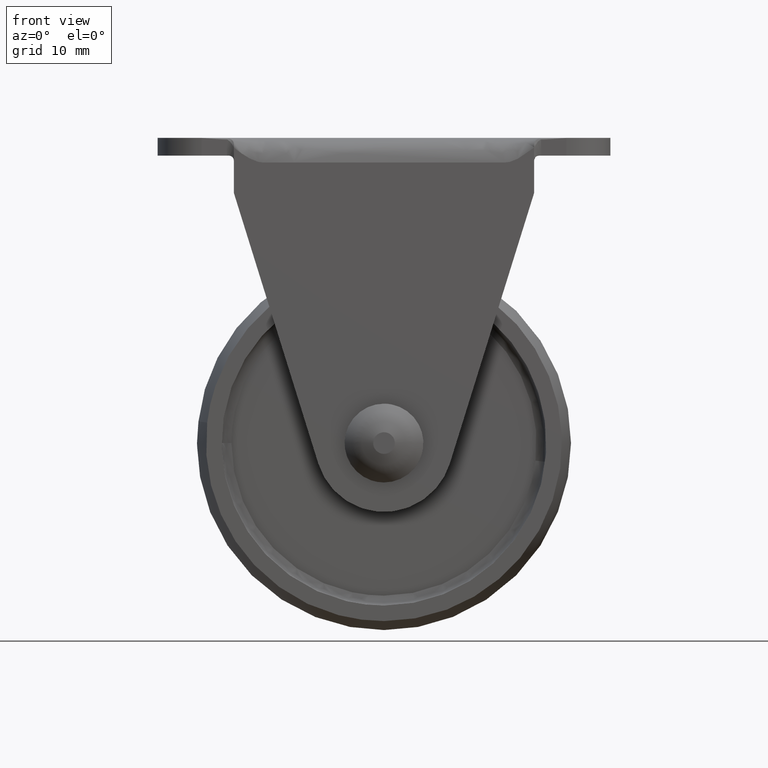
[diagram: clean part render]
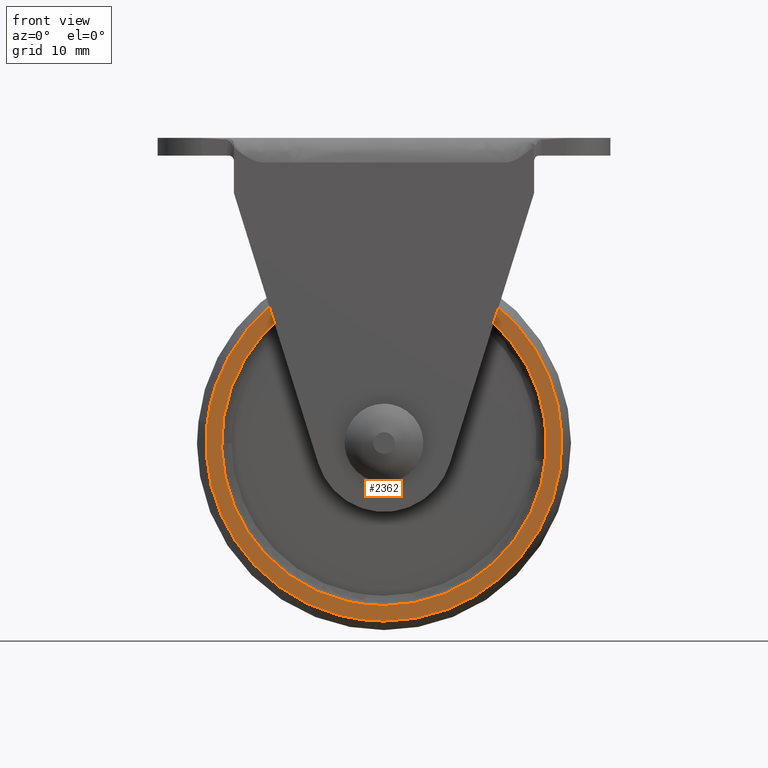
[diagram: same view with one face highlighted and labeled with its STEP entity id]
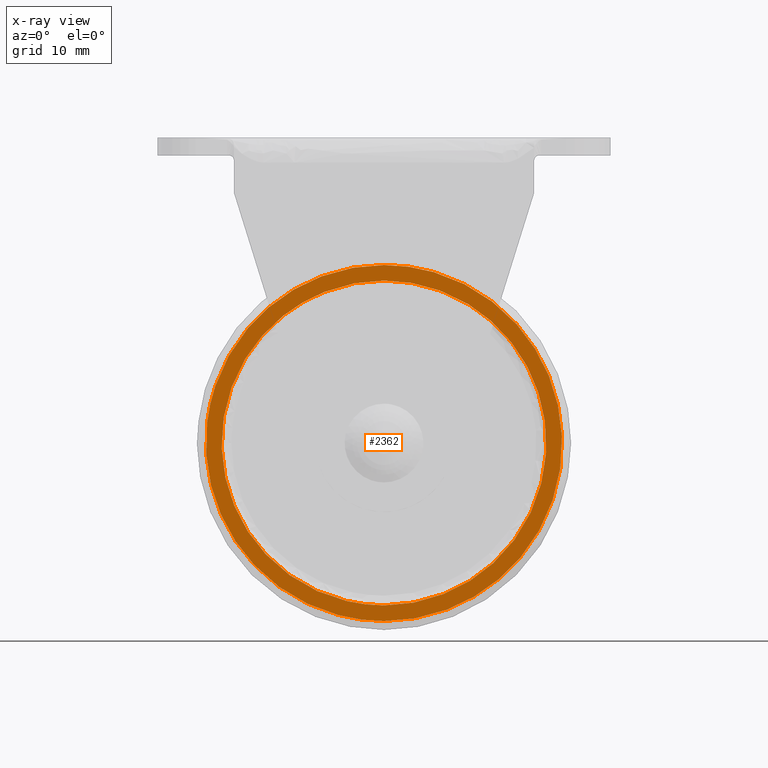
[diagram: x-ray of the same camera — body ghosted, the highlighted face saturated]
A machine part, front view. The second image highlights one B-rep face of the part: STEP entity #2362.
The next image is the same camera in x-ray: the body ghosted, the highlighted face saturated — about 0% of this face is hidden behind the body in this view.
In plain terms, the highlighted face is a freeform B-spline surface patch.
Its self-contained STEP definition (entity closure, byte-faithful):
#761=CARTESIAN_POINT('',(-10.271489299432320,-8.500000000000000,12.913036342070731));
#762=VERTEX_POINT('',#761);
#768=CARTESIAN_POINT('',(0.0,-8.500000000000000,-16.500000000000000));
#769=VERTEX_POINT('',#768);
#770=CARTESIAN_POINT('',(-10.271489299432318,-8.500000000000000,12.913036342070734));
#771=CARTESIAN_POINT('',(-16.499999999999993,-8.500000000000000,7.958656960062617));
#772=CARTESIAN_POINT('',(-16.500000000000000,-8.500000000000000,9.884614E-016));
#773=CARTESIAN_POINT('',(-16.499999999999993,-8.500000000000002,-16.499999999999993));
#774=CARTESIAN_POINT('',(0.0,-8.500000000000000,-16.500000000000000));
#782=(BOUNDED_CURVE()B_SPLINE_CURVE(2,(#770,#771,#772,#773,#774),.UNSPECIFIED.,.F.,.U.)B_SPLINE_CURVE_WITH_KNOTS((3,2,3),(0.607863851541988,0.750000000000000,1.0),.UNSPECIFIED.)CURVE()GEOMETRIC_REPRESENTATION_ITEM()RATIONAL_B_SPLINE_CURVE((0.856305626947426,0.833477143873544,1.0,0.707106781186548,1.0))REPRESENTATION_ITEM(''));
#783=EDGE_CURVE('',#762,#769,#782,.T.);
#785=CARTESIAN_POINT('',(12.913036660419079,-8.500000000000000,10.271488899213290));
#786=VERTEX_POINT('',#785);
#787=CARTESIAN_POINT('',(0.0,-8.500000000000000,-16.500000000000000));
#788=CARTESIAN_POINT('',(16.499999999999993,-8.500000000000002,-16.499999999999993));
#789=CARTESIAN_POINT('',(16.500000000000000,-8.500000000000000,9.884614E-016));
#790=CARTESIAN_POINT('',(16.500000000000000,-8.500000000000002,5.762056083963907));
#791=CARTESIAN_POINT('',(12.913036660419074,-8.500000000000000,10.271488899213288));
#799=(BOUNDED_CURVE()B_SPLINE_CURVE(2,(#787,#788,#789,#790,#791),.UNSPECIFIED.,.F.,.U.)B_SPLINE_CURVE_WITH_KNOTS((3,2,3),(0.0,0.250000000000000,0.357863846850365),.UNSPECIFIED.)CURVE()GEOMETRIC_REPRESENTATION_ITEM()RATIONAL_B_SPLINE_CURVE((1.0,0.707106781186548,1.0,0.873629642809582,0.856305628454469))REPRESENTATION_ITEM(''));
#800=EDGE_CURVE('',#769,#786,#799,.T.);
#900=CARTESIAN_POINT('',(0.0,-8.500000000000000,16.500000000000000));
#901=VERTEX_POINT('',#900);
#902=CARTESIAN_POINT('',(12.913036660419074,-8.500000000000000,10.271488899213288));
#903=CARTESIAN_POINT('',(7.958657275246975,-8.500000000000000,16.500000000000004));
#904=CARTESIAN_POINT('',(0.0,-8.500000000000000,16.500000000000000));
#912=(BOUNDED_CURVE()B_SPLINE_CURVE(2,(#902,#903,#904),.UNSPECIFIED.,.F.,.U.)B_SPLINE_CURVE_WITH_KNOTS((3,3),(0.357863846850365,0.500000000000000),.UNSPECIFIED.)CURVE()GEOMETRIC_REPRESENTATION_ITEM()RATIONAL_B_SPLINE_CURVE((0.856305628454469,0.833477138376966,1.0))REPRESENTATION_ITEM(''));
#913=EDGE_CURVE('',#786,#901,#912,.T.);
#915=CARTESIAN_POINT('',(0.0,-8.500000000000000,16.500000000000000));
#916=CARTESIAN_POINT('',(-5.762056370841958,-8.500000000000002,16.500000000000004));
#917=CARTESIAN_POINT('',(-10.271489299432318,-8.500000000000000,12.913036342070734));
#925=(BOUNDED_CURVE()B_SPLINE_CURVE(2,(#915,#916,#917),.UNSPECIFIED.,.F.,.U.)B_SPLINE_CURVE_WITH_KNOTS((3,3),(0.500000000000000,0.607863851541988),.UNSPECIFIED.)CURVE()GEOMETRIC_REPRESENTATION_ITEM()RATIONAL_B_SPLINE_CURVE((1.0,0.873629637313003,0.856305626947426))REPRESENTATION_ITEM(''));
#926=EDGE_CURVE('',#901,#762,#925,.T.);
#2123=CARTESIAN_POINT('',(-17.965475642873859,-8.500000054415736,2.088322934038303));
#2124=VERTEX_POINT('',#2123);
#2125=CARTESIAN_POINT('',(0.0,-8.500000000000000,-18.086442662386350));
#2126=VERTEX_POINT('',#2125);
#2127=CARTESIAN_POINT('',(-17.965475642873862,-8.500000054415738,2.088322934038303));
#2128=CARTESIAN_POINT('',(-18.086442662386354,-8.500000000000000,1.047665000780913));
#2129=CARTESIAN_POINT('',(-18.086442662386350,-8.500000000000000,9.884614E-016));
#2130=CARTESIAN_POINT('',(-18.086442662386347,-8.500000000000002,-18.086442662386347));
#2131=CARTESIAN_POINT('',(0.0,-8.500000000000000,-18.086442662386350));
#2139=(BOUNDED_CURVE()B_SPLINE_CURVE(2,(#2127,#2128,#2129,#2130,#2131),.UNSPECIFIED.,.F.,.U.)B_SPLINE_CURVE_WITH_KNOTS((3,2,3),(0.730000133963560,0.750000000000000,1.0),.UNSPECIFIED.)CURVE()GEOMETRIC_REPRESENTATION_ITEM()RATIONAL_B_SPLINE_CURVE((0.956886381863590,0.976568699442997,1.0,0.707106781186548,1.0))REPRESENTATION_ITEM(''));
#2140=EDGE_CURVE('',#2124,#2126,#2139,.T.);
#2193=CARTESIAN_POINT('',(0.0,-8.499991615124024,18.086444485815740));
#2194=VERTEX_POINT('',#2193);
#2210=CARTESIAN_POINT('',(0.0,-8.500000000000000,-18.086442662386350));
#2211=CARTESIAN_POINT('',(18.086442662386347,-8.500000000000002,-18.086442662386347));
#2212=CARTESIAN_POINT('',(18.086442662386350,-8.499995807562012,0.000000911714696));
#2213=CARTESIAN_POINT('',(18.086442662386347,-8.499991615124024,18.086444485815740));
#2214=CARTESIAN_POINT('',(0.0,-8.499991615124024,18.086444485815740));
#2222=(BOUNDED_CURVE()B_SPLINE_CURVE(2,(#2210,#2211,#2212,#2213,#2214),.UNSPECIFIED.,.F.,.U.)B_SPLINE_CURVE_WITH_KNOTS((3,2,3),(0.0,0.250000000000000,0.500000000000000),.UNSPECIFIED.)CURVE()GEOMETRIC_REPRESENTATION_ITEM()RATIONAL_B_SPLINE_CURVE((1.0,0.707106781186548,1.0,0.707106781186548,1.0))REPRESENTATION_ITEM(''));
#2223=EDGE_CURVE('',#2126,#2194,#2222,.T.);
#2261=CARTESIAN_POINT('',(0.0,-8.499991615124024,18.086444485815740));
#2262=CARTESIAN_POINT('',(-16.105839923462330,-8.499995834769880,18.086443573417547));
#2263=CARTESIAN_POINT('',(-17.965475642873862,-8.500000054415738,2.088322934038303));
#2271=(BOUNDED_CURVE()B_SPLINE_CURVE(2,(#2261,#2262,#2263),.UNSPECIFIED.,.F.,.U.)B_SPLINE_CURVE_WITH_KNOTS((3,3),(0.500000000000000,0.730000133963560),.UNSPECIFIED.)CURVE()GEOMETRIC_REPRESENTATION_ITEM()RATIONAL_B_SPLINE_CURVE((1.0,0.730538081743551,0.956886381863590))REPRESENTATION_ITEM(''));
#2272=EDGE_CURVE('',#2194,#2124,#2271,.T.);
#2346=CARTESIAN_POINT('',(-19.893176354334660,-8.500000000000000,19.893280468323539));
#2347=CARTESIAN_POINT('',(-19.893176354334660,-8.500000000000000,-19.893279291715778));
#2348=CARTESIAN_POINT('',(19.893274338406091,-8.500000000000000,19.893280468323539));
#2349=CARTESIAN_POINT('',(19.893274338406091,-8.500000000000000,-19.893279291715778));
#2350=B_SPLINE_SURFACE_WITH_KNOTS('',1,1,((#2346,#2348),(#2347,#2349)),.UNSPECIFIED.,.F.,.F.,.U.,(2,2),(2,2),(0.0,39.786559760039317),(0.0,39.786450692740750),.UNSPECIFIED.);
#2351=ORIENTED_EDGE('',*,*,#2223,.T.);
#2352=ORIENTED_EDGE('',*,*,#2272,.T.);
#2353=ORIENTED_EDGE('',*,*,#2140,.T.);
#2354=EDGE_LOOP('',(#2351,#2352,#2353));
#2355=FACE_OUTER_BOUND('',#2354,.T.);
#2356=ORIENTED_EDGE('',*,*,#800,.F.);
#2357=ORIENTED_EDGE('',*,*,#783,.F.);
#2358=ORIENTED_EDGE('',*,*,#926,.F.);
#2359=ORIENTED_EDGE('',*,*,#913,.F.);
#2360=EDGE_LOOP('',(#2356,#2357,#2358,#2359));
#2361=FACE_BOUND('',#2360,.T.);
#2362=ADVANCED_FACE('',(#2355,#2361),#2350,.T.);